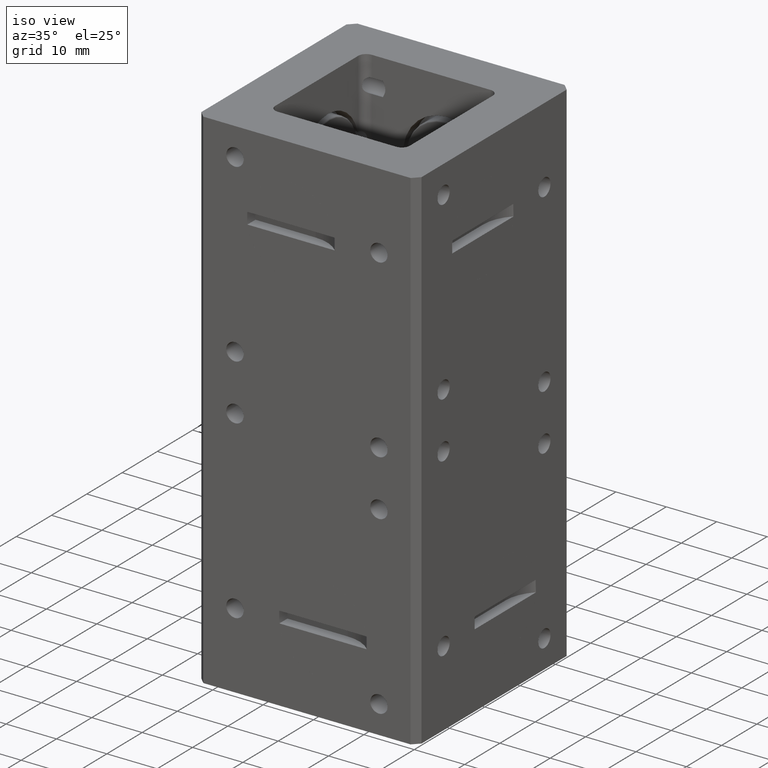
[diagram: clean part render]
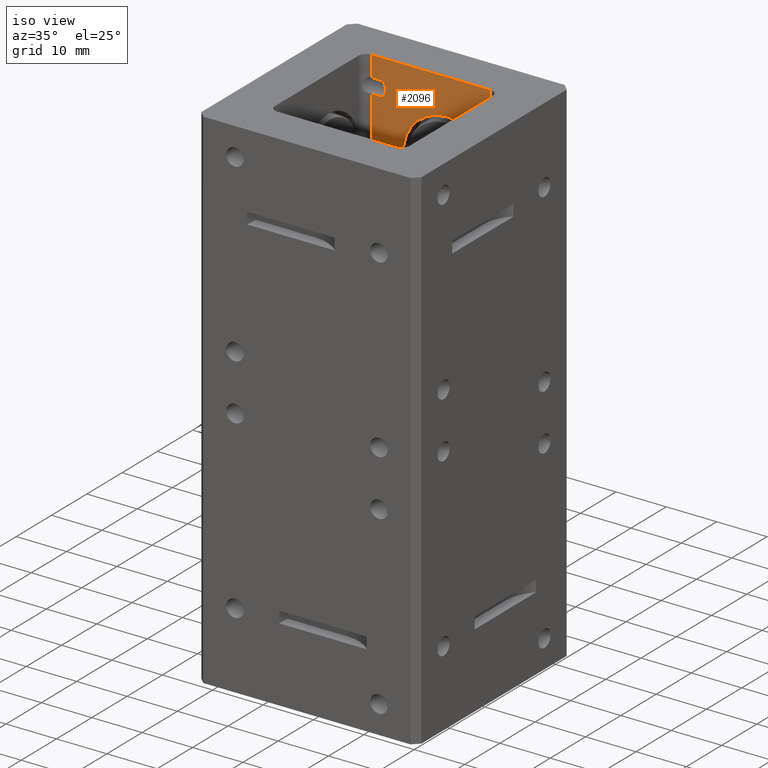
[diagram: same view with one face highlighted and labeled with its STEP entity id]
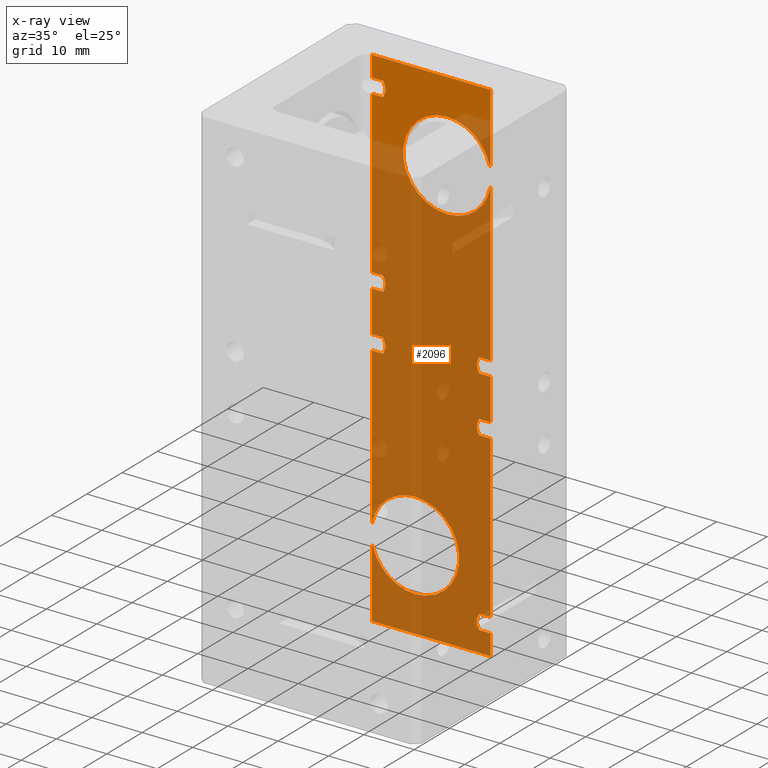
[diagram: x-ray of the same camera — body ghosted, the highlighted face saturated]
A machine part, iso view. The second image highlights one B-rep face of the part: STEP entity #2096.
The next image is the same camera in x-ray: the body ghosted, the highlighted face saturated — about 88% of this face is hidden behind the body in this view.
In plain terms, the highlighted planar face has unit normal (0, -1, 0).
Its self-contained STEP definition (entity closure, byte-faithful):
#102 = LINE ( 'NONE', #1691, #12678 ) ;
#171 = VECTOR ( 'NONE', #16399, 39.37007874015748143 ) ;
#243 = EDGE_CURVE ( 'NONE', #6426, #3027, #13170, .T. ) ;
#272 = VERTEX_POINT ( 'NONE', #4719 ) ;
#384 = DIRECTION ( 'NONE',  ( -0.000000000000000000, -0.000000000000000000, -1.000000000000000000 ) ) ;
#486 = CARTESIAN_POINT ( 'NONE',  ( -0.4639999999999996350, 0.5259999999999996900, 1.838373774496717239 ) ) ;
#641 = DIRECTION ( 'NONE',  ( 0.000000000000000000, 0.000000000000000000, -1.000000000000000000 ) ) ;
#667 = VERTEX_POINT ( 'NONE', #14389 ) ;
#815 = ORIENTED_EDGE ( 'NONE', *, *, #17587, .F. ) ;
#844 = CARTESIAN_POINT ( 'NONE',  ( -0.4639999999999996350, 0.5259999999999996900, 1.723626225503282816 ) ) ;
#857 = VECTOR ( 'NONE', #6036, 39.37007874015748143 ) ;
#879 = VECTOR ( 'NONE', #10833, 39.37007874015748143 ) ;
#900 = CARTESIAN_POINT ( 'NONE',  ( 0.3759999999999934506, 0.5259999999999996900, -0.4633737744967093564 ) ) ;
#919 = CARTESIAN_POINT ( 'NONE',  ( -0.3714278024997919592, 0.5259999999999996900, 0.4543550165401254448 ) ) ;
#1025 = EDGE_CURVE ( 'NONE', #4883, #15552, #11957, .T. ) ;
#1045 = EDGE_CURVE ( 'NONE', #1119, #6895, #9531, .T. ) ;
#1048 = DIRECTION ( 'NONE',  ( 0.000000000000000000, -0.000000000000000000, -1.000000000000000000 ) ) ;
#1054 = CARTESIAN_POINT ( 'NONE',  ( 0.4640000000000004121, 0.5259999999999996900, -1.723626225503291032 ) ) ;
#1074 = CARTESIAN_POINT ( 'NONE',  ( 0.3713960435050798203, 0.5259999999999996900, -1.829292371239651604 ) ) ;
#1119 = VERTEX_POINT ( 'NONE', #7474 ) ;
#1124 = DIRECTION ( 'NONE',  ( 1.000000000000000000, -0.000000000000000000, -0.000000000000000000 ) ) ;
#1129 = DIRECTION ( 'NONE',  ( 0.000000000000000000, -1.000000000000000000, 0.000000000000000000 ) ) ;
#1182 = VERTEX_POINT ( 'NONE', #17712 ) ;
#1193 = VERTEX_POINT ( 'NONE', #14559 ) ;
#1204 = CARTESIAN_POINT ( 'NONE',  ( -0.3598165165039762803, 0.5259999999999996900, 0.4262139015534828212 ) ) ;
#1243 = CARTESIAN_POINT ( 'NONE',  ( -0.4639999999999996350, 0.5259999999999996900, -2.000000000000000000 ) ) ;
#1291 = CARTESIAN_POINT ( 'NONE',  ( 0.3670370577167692550, 0.5259999999999996900, 0.07024275800870537212 ) ) ;
#1321 = CARTESIAN_POINT ( 'NONE',  ( 0.3759999999999934506, 0.5259999999999996900, -0.3486262255032906432 ) ) ;
#1379 = CARTESIAN_POINT ( 'NONE',  ( 0.3669803936085606622, 0.5259999999999996900, -0.008117424668353205933 ) ) ;
#1388 = CARTESIAN_POINT ( 'NONE',  ( -0.4639999999999996350, 0.5259999999999996900, 2.000000000000000000 ) ) ;
#1509 = EDGE_CURVE ( 'NONE', #17460, #10762, #10696, .T. ) ;
#1557 = CARTESIAN_POINT ( 'NONE',  ( -0.4639999999999996350, 0.5259999999999996900, 2.000000000000000000 ) ) ;
#1621 = CIRCLE ( 'NONE', #17310, 0.3437499999999998335 ) ;
#1691 = CARTESIAN_POINT ( 'NONE',  ( -0.8600000000000013189, 0.5259999999999996900, 1.723626225503282816 ) ) ;
#1760 = ORIENTED_EDGE ( 'NONE', *, *, #9194, .T. ) ;
#1767 = CARTESIAN_POINT ( 'NONE',  ( -0.8600000000000013189, 0.5259999999999996900, -0.08837377449671701690 ) ) ;
#1794 = DIRECTION ( 'NONE',  ( 1.000000000000000000, 0.000000000000000000, 0.000000000000000000 ) ) ;
#1967 = VERTEX_POINT ( 'NONE', #10535 ) ;
#2041 = CARTESIAN_POINT ( 'NONE',  ( -0.3760000000000013887, 0.5259999999999996900, 1.723626225503282372 ) ) ;
#2074 = DIRECTION ( 'NONE',  ( 0.000000000000000000, -1.000000000000000000, 0.000000000000000000 ) ) ;
#2086 = ORIENTED_EDGE ( 'NONE', *, *, #13887, .F. ) ;
#2096 = ADVANCED_FACE ( 'NONE', ( #9291 ), #6525, .T. ) ;
#2147 = EDGE_CURVE ( 'NONE', #3691, #9019, #3325, .T. ) ;
#2152 = CARTESIAN_POINT ( 'NONE',  ( 0.4640000000000004121, 0.5259999999999996900, 1.463373774496709467 ) ) ;
#2168 = CARTESIAN_POINT ( 'NONE',  ( 0.3598165165039737823, 0.5259999999999995790, -0.3857860984465205645 ) ) ;
#2421 = VECTOR ( 'NONE', #7334, 39.37007874015748143 ) ;
#2472 = EDGE_CURVE ( 'NONE', #272, #10762, #16103, .T. ) ;
#2534 = VECTOR ( 'NONE', #17591, 39.37007874015748143 ) ;
#2701 = CIRCLE ( 'NONE', #5826, 0.3437499999999998335 ) ;
#2715 = EDGE_CURVE ( 'NONE', #18840, #5136, #14868, .T. ) ;
#2837 = EDGE_CURVE ( 'NONE', #15478, #14735, #13218, .T. ) ;
#2912 = ORIENTED_EDGE ( 'NONE', *, *, #4072, .F. ) ;
#3027 = VERTEX_POINT ( 'NONE', #486 ) ;
#3088 = CARTESIAN_POINT ( 'NONE',  ( -0.3598165165039762803, 0.5259999999999996900, 1.801213901553482710 ) ) ;
#3314 = CARTESIAN_POINT ( 'NONE',  ( 0.4640000000000004121, 0.5259999999999996900, -0.02637377449670971069 ) ) ;
#3325 = CIRCLE ( 'NONE', #9500, 0.3437499999999998335 ) ;
#3433 = CARTESIAN_POINT ( 'NONE',  ( 0.4640000000000004121, 0.5259999999999996900, 1.318052107150487151 ) ) ;
#3445 = CARTESIAN_POINT ( 'NONE',  ( 0.1249999999999999584, 0.5259999999999996900, 1.375000000000000000 ) ) ;
#3471 = CARTESIAN_POINT ( 'NONE',  ( -0.3570664232477111510, 0.5259999999999996900, 0.3958191447205977043 ) ) ;
#3474 = VERTEX_POINT ( 'NONE', #5072 ) ;
#3482 = B_SPLINE_CURVE_WITH_KNOTS ( 'NONE', 3,
 ( #3502, #9406, #7955, #18219, #9583, #15412, #12558, #4962, #3591, #13808 ),
 .UNSPECIFIED., .F., .F.,
 ( 4, 2, 2, 2, 4 ),
 ( 0.008688275837649313271, 0.009462812957391030302, 0.01023735007713274733, 0.01101188719687446610, 0.01178642431661618313 ),
 .UNSPECIFIED. ) ;
#3502 = CARTESIAN_POINT ( 'NONE',  ( -0.3760000000000012776, 0.5259999999999996900, -0.08837377449671693364 ) ) ;
#3565 = CARTESIAN_POINT ( 'NONE',  ( -0.3670370577167744730, 0.5259999999999998010, 0.4452427580087112147 ) ) ;
#3591 = CARTESIAN_POINT ( 'NONE',  ( -0.3714278024997919037, 0.5259999999999996900, 0.01735501654012486586 ) ) ;
#3691 = VERTEX_POINT ( 'NONE', #13119 ) ;
#3711 = LINE ( 'NONE', #6845, #12444 ) ;
#3743 = VERTEX_POINT ( 'NONE', #10634 ) ;
#3782 = CARTESIAN_POINT ( 'NONE',  ( -0.8600000000000013189, 0.5259999999999996900, 0.02637377449671696877 ) ) ;
#3785 = VERTEX_POINT ( 'NONE', #7661 ) ;
#3816 = VECTOR ( 'NONE', #16907, 39.37007874015748143 ) ;
#3832 = VECTOR ( 'NONE', #12329, 39.37007874015748143 ) ;
#3838 = ORIENTED_EDGE ( 'NONE', *, *, #11992, .F. ) ;
#4022 = VECTOR ( 'NONE', #8235, 39.37007874015748143 ) ;
#4072 = EDGE_CURVE ( 'NONE', #7396, #3743, #9635, .T. ) ;
#4364 = ORIENTED_EDGE ( 'NONE', *, *, #1045, .T. ) ;
#4427 = LINE ( 'NONE', #5904, #12282 ) ;
#4453 = CARTESIAN_POINT ( 'NONE',  ( -0.3760000000000013887, 0.5259999999999996900, 1.838373774496717461 ) ) ;
#4506 = CARTESIAN_POINT ( 'NONE',  ( 0.4640000000000004121, 0.5259999999999996900, -2.000000000000000000 ) ) ;
#4518 = DIRECTION ( 'NONE',  ( 0.000000000000000000, 0.000000000000000000, -1.000000000000000000 ) ) ;
#4654 = DIRECTION ( 'NONE',  ( 1.000000000000000000, -0.000000000000000000, -0.000000000000000000 ) ) ;
#4667 = LINE ( 'NONE', #7384, #857 ) ;
#4710 = LINE ( 'NONE', #17490, #11930 ) ;
#4719 = CARTESIAN_POINT ( 'NONE',  ( -0.4639999999999996350, 0.5259999999999996900, -1.463373774496716573 ) ) ;
#4802 = EDGE_CURVE ( 'NONE', #13574, #12518, #14998, .T. ) ;
#4862 = VECTOR ( 'NONE', #384, 39.37007874015748143 ) ;
#4871 = ORIENTED_EDGE ( 'NONE', *, *, #5958, .T. ) ;
#4883 = VERTEX_POINT ( 'NONE', #9832 ) ;
#4917 = ORIENTED_EDGE ( 'NONE', *, *, #12196, .F. ) ;
#4950 = LINE ( 'NONE', #12459, #8906 ) ;
#4962 = CARTESIAN_POINT ( 'NONE',  ( -0.3670370577167743065, 0.5259999999999998010, 0.008242758008710692960 ) ) ;
#4976 = CARTESIAN_POINT ( 'NONE',  ( 0.4640000000000004121, 0.5259999999999996900, -0.3486262255032906432 ) ) ;
#5044 = ORIENTED_EDGE ( 'NONE', *, *, #17856, .F. ) ;
#5072 = CARTESIAN_POINT ( 'NONE',  ( -0.3760000000000012776, 0.5259999999999996900, -0.08837377449671693364 ) ) ;
#5111 = CARTESIAN_POINT ( 'NONE',  ( 0.4640000000000004121, 0.5259999999999996900, 2.000000000000000000 ) ) ;
#5136 = VERTEX_POINT ( 'NONE', #6265 ) ;
#5195 = CARTESIAN_POINT ( 'NONE',  ( 0.8599999999999935474, 0.5259999999999996900, -0.4633737744967093564 ) ) ;
#5246 = ORIENTED_EDGE ( 'NONE', *, *, #15863, .F. ) ;
#5282 = ORIENTED_EDGE ( 'NONE', *, *, #11180, .F. ) ;
#5307 = ORIENTED_EDGE ( 'NONE', *, *, #12497, .F. ) ;
#5359 = CARTESIAN_POINT ( 'NONE',  ( -0.3760000000000013887, 0.5259999999999996900, 0.4633737744967174610 ) ) ;
#5390 = VECTOR ( 'NONE', #9424, 39.37007874015748143 ) ;
#5440 = DIRECTION ( 'NONE',  ( 0.000000000000000000, -1.000000000000000000, 0.000000000000000000 ) ) ;
#5456 = ORIENTED_EDGE ( 'NONE', *, *, #10601, .F. ) ;
#5674 = CARTESIAN_POINT ( 'NONE',  ( 0.3713960435050798203, 0.5259999999999996900, -0.4542923712396518265 ) ) ;
#5716 = ORIENTED_EDGE ( 'NONE', *, *, #10058, .F. ) ;
#5780 = VERTEX_POINT ( 'NONE', #3314 ) ;
#5826 = AXIS2_PLACEMENT_3D ( 'NONE', #6756, #2074, #13942 ) ;
#5904 = CARTESIAN_POINT ( 'NONE',  ( -0.8600000000000013189, 0.5259999999999996900, 1.838373774496717239 ) ) ;
#5926 = CARTESIAN_POINT ( 'NONE',  ( -0.3570664232477113731, 0.5259999999999996900, 1.770819144720598093 ) ) ;
#5955 = CARTESIAN_POINT ( 'NONE',  ( -0.8600000000000013189, 0.5259999999999996900, 0.3486262255032827051 ) ) ;
#5958 = EDGE_CURVE ( 'NONE', #13117, #6426, #15401, .T. ) ;
#6027 = ORIENTED_EDGE ( 'NONE', *, *, #2837, .F. ) ;
#6036 = DIRECTION ( 'NONE',  ( -0.000000000000000000, -0.000000000000000000, -1.000000000000000000 ) ) ;
#6046 = B_SPLINE_CURVE_WITH_KNOTS ( 'NONE', 3,
 ( #15924, #14512, #1291, #17010, #9723, #15539, #11726, #1379, #19041, #17861 ),
 .UNSPECIFIED., .F., .F.,
 ( 4, 2, 2, 2, 4 ),
 ( 0.008808687082116340578, 0.009579936630720160828, 0.01035118617932398108, 0.01112243572792779960, 0.01189368527653161985 ),
 .UNSPECIFIED. ) ;
#6112 = CARTESIAN_POINT ( 'NONE',  ( -0.3669803936085656026, 0.5259999999999996900, 1.741882575331641814 ) ) ;
#6149 = EDGE_CURVE ( 'NONE', #272, #3785, #10421, .T. ) ;
#6265 = CARTESIAN_POINT ( 'NONE',  ( 0.3759999999999934506, 0.5259999999999996900, -1.838373774496709467 ) ) ;
#6362 = ORIENTED_EDGE ( 'NONE', *, *, #11084, .F. ) ;
#6426 = VERTEX_POINT ( 'NONE', #1388 ) ;
#6525 = PLANE ( 'NONE',  #9179 ) ;
#6756 = CARTESIAN_POINT ( 'NONE',  ( -0.1250000000000000278, 0.5259999999999996900, -1.375000000000000000 ) ) ;
#6759 = VERTEX_POINT ( 'NONE', #5359 ) ;
#6845 = CARTESIAN_POINT ( 'NONE',  ( -0.8600000000000013189, 0.5259999999999996900, 0.4633737744967172389 ) ) ;
#6895 = VERTEX_POINT ( 'NONE', #18909 ) ;
#6920 = CARTESIAN_POINT ( 'NONE',  ( 0.3597782595194781718, 0.5259999999999996900, -1.801088764216034255 ) ) ;
#7334 = DIRECTION ( 'NONE',  ( -0.000000000000000000, -0.000000000000000000, -1.000000000000000000 ) ) ;
#7384 = CARTESIAN_POINT ( 'NONE',  ( -0.4639999999999996350, 0.5259999999999996900, 2.000000000000000000 ) ) ;
#7396 = VERTEX_POINT ( 'NONE', #17353 ) ;
#7474 = CARTESIAN_POINT ( 'NONE',  ( -0.4639999999999996350, 0.5259999999999996900, 0.3486262255032828161 ) ) ;
#7497 = CARTESIAN_POINT ( 'NONE',  ( -0.4639999999999996350, 0.5259999999999996900, -1.318052107150482044 ) ) ;
#7661 = CARTESIAN_POINT ( 'NONE',  ( -0.4571959338721702792, 0.5259999999999995790, -1.463373774496716795 ) ) ;
#7666 = EDGE_CURVE ( 'NONE', #5780, #15478, #4710, .T. ) ;
#7682 = VECTOR ( 'NONE', #13433, 39.37007874015748143 ) ;
#7916 = VERTEX_POINT ( 'NONE', #3433 ) ;
#7921 = CARTESIAN_POINT ( 'NONE',  ( 0.8599999999999935474, 0.5259999999999996900, 0.08837377449670921759 ) ) ;
#7955 = CARTESIAN_POINT ( 'NONE',  ( -0.3669803936085657137, 0.5259999999999996900, -0.07011742466835797771 ) ) ;
#7975 = EDGE_CURVE ( 'NONE', #14735, #4883, #11293, .T. ) ;
#8074 = LINE ( 'NONE', #10577, #171 ) ;
#8082 = CARTESIAN_POINT ( 'NONE',  ( 0.3570793821737509588, 0.5259999999999996900, -0.3957421139530918341 ) ) ;
#8185 = B_SPLINE_CURVE_WITH_KNOTS ( 'NONE', 3,
 ( #11860, #11761, #6112, #13305, #5926, #17704, #3088, #10521, #14552, #4453 ),
 .UNSPECIFIED., .F., .F.,
 ( 4, 2, 2, 2, 4 ),
 ( 0.008688275837649361844, 0.009462812957391087548, 0.01023735007713281325, 0.01101188719687453722, 0.01178642431661626293 ),
 .UNSPECIFIED. ) ;
#8205 = VECTOR ( 'NONE', #1124, 39.37007874015748143 ) ;
#8235 = DIRECTION ( 'NONE',  ( -1.000000000000000000, -0.000000000000000000, -0.000000000000000000 ) ) ;
#8282 = CARTESIAN_POINT ( 'NONE',  ( -0.3570793821737515694, 0.5259999999999996900, 0.4162578860469105524 ) ) ;
#8340 = CARTESIAN_POINT ( 'NONE',  ( -0.1250000000000000278, 0.5259999999999996900, -1.031250000000000000 ) ) ;
#8629 = CARTESIAN_POINT ( 'NONE',  ( 0.3570793821737510698, 0.5259999999999996900, -1.770742113953092112 ) ) ;
#8644 = CARTESIAN_POINT ( 'NONE',  ( 0.1249999999999999584, 0.5259999999999996900, 1.718749999999999778 ) ) ;
#8682 = LINE ( 'NONE', #14520, #2421 ) ;
#8837 = CARTESIAN_POINT ( 'NONE',  ( 0.4640000000000004121, 0.5259999999999996900, -1.838373774496709245 ) ) ;
#8906 = VECTOR ( 'NONE', #10823, 39.37007874015748143 ) ;
#9019 = VERTEX_POINT ( 'NONE', #8340 ) ;
#9179 = AXIS2_PLACEMENT_3D ( 'NONE', #14173, #1129, #1048 ) ;
#9194 = EDGE_CURVE ( 'NONE', #1182, #11231, #4667, .T. ) ;
#9226 = CARTESIAN_POINT ( 'NONE',  ( 0.8599999999999935474, 0.5259999999999996900, 1.463373774496709467 ) ) ;
#9230 = CIRCLE ( 'NONE', #10770, 0.3437499999999998335 ) ;
#9269 = EDGE_CURVE ( 'NONE', #14722, #18840, #4950, .T. ) ;
#9291 = FACE_OUTER_BOUND ( 'NONE', #12805, .T. ) ;
#9306 = CARTESIAN_POINT ( 'NONE',  ( -0.4639999999999996350, 0.5259999999999996900, 0.4633737744967172389 ) ) ;
#9357 = DIRECTION ( 'NONE',  ( -1.000000000000000000, -0.000000000000000000, -0.000000000000000000 ) ) ;
#9406 = CARTESIAN_POINT ( 'NONE',  ( -0.3713960435050865927, 0.5259999999999998010, -0.07929237123965834910 ) ) ;
#9424 = DIRECTION ( 'NONE',  ( -1.000000000000000000, 0.000000000000000000, 0.000000000000000000 ) ) ;
#9500 = AXIS2_PLACEMENT_3D ( 'NONE', #10141, #5440, #12920 ) ;
#9519 = CARTESIAN_POINT ( 'NONE',  ( 0.3714278024997852978, 0.5259999999999998010, -0.3576449834598813826 ) ) ;
#9531 = LINE ( 'NONE', #15355, #3816 ) ;
#9583 = CARTESIAN_POINT ( 'NONE',  ( -0.3570664232477113731, 0.5259999999999996900, -0.04118085527940230917 ) ) ;
#9635 = LINE ( 'NONE', #7921, #3832 ) ;
#9647 = VECTOR ( 'NONE', #10253, 39.37007874015748143 ) ;
#9723 = CARTESIAN_POINT ( 'NONE',  ( 0.3570793821737510143, 0.5259999999999995790, 0.04125788604690782541 ) ) ;
#9832 = CARTESIAN_POINT ( 'NONE',  ( 0.3759999999999934506, 0.5259999999999996900, -0.4633737744967093564 ) ) ;
#9894 = DIRECTION ( 'NONE',  ( 0.000000000000000000, 0.000000000000000000, -1.000000000000000000 ) ) ;
#9998 = VECTOR ( 'NONE', #17553, 39.37007874015748143 ) ;
#10016 = CARTESIAN_POINT ( 'NONE',  ( -0.3597782595194802813, 0.5259999999999995790, 0.3859112357839629692 ) ) ;
#10043 = CARTESIAN_POINT ( 'NONE',  ( 0.8599999999999935474, 0.5259999999999996900, -1.838373774496709467 ) ) ;
#10058 = EDGE_CURVE ( 'NONE', #1967, #10576, #1621, .T. ) ;
#10141 = CARTESIAN_POINT ( 'NONE',  ( -0.1250000000000000278, 0.5259999999999996900, -1.375000000000000000 ) ) ;
#10202 = VERTEX_POINT ( 'NONE', #13261 ) ;
#10253 = DIRECTION ( 'NONE',  ( -1.000000000000000000, 0.000000000000000000, 0.000000000000000000 ) ) ;
#10314 = VERTEX_POINT ( 'NONE', #15058 ) ;
#10325 = EDGE_CURVE ( 'NONE', #15486, #1967, #14960, .T. ) ;
#10359 = ORIENTED_EDGE ( 'NONE', *, *, #7666, .F. ) ;
#10388 = EDGE_CURVE ( 'NONE', #6759, #12518, #3711, .T. ) ;
#10421 = LINE ( 'NONE', #11856, #10486 ) ;
#10486 = VECTOR ( 'NONE', #16245, 39.37007874015748143 ) ;
#10488 = EDGE_CURVE ( 'NONE', #10314, #7916, #13038, .T. ) ;
#10489 = CARTESIAN_POINT ( 'NONE',  ( 0.1249999999999999584, 0.5259999999999996900, 1.375000000000000000 ) ) ;
#10521 = CARTESIAN_POINT ( 'NONE',  ( -0.3670370577167745840, 0.5259999999999998010, 1.820242758008711048 ) ) ;
#10535 = CARTESIAN_POINT ( 'NONE',  ( 0.4571959338721721666, 0.5259999999999996900, 1.463373774496709467 ) ) ;
#10576 = VERTEX_POINT ( 'NONE', #8644 ) ;
#10577 = CARTESIAN_POINT ( 'NONE',  ( 0.4640000000000004121, 0.5259999999999996900, 2.000000000000000000 ) ) ;
#10601 = EDGE_CURVE ( 'NONE', #1119, #667, #19019, .T. ) ;
#10634 = CARTESIAN_POINT ( 'NONE',  ( 0.3759999999999936171, 0.5259999999999996900, 0.08837377449670937024 ) ) ;
#10696 = LINE ( 'NONE', #17980, #15636 ) ;
#10762 = VERTEX_POINT ( 'NONE', #1243 ) ;
#10770 = AXIS2_PLACEMENT_3D ( 'NONE', #18349, #12593, #16711 ) ;
#10823 = DIRECTION ( 'NONE',  ( -1.000000000000000000, 0.000000000000000000, 0.000000000000000000 ) ) ;
#10833 = DIRECTION ( 'NONE',  ( -1.000000000000000000, -0.000000000000000000, -0.000000000000000000 ) ) ;
#10962 = LINE ( 'NONE', #11053, #13061 ) ;
#10973 = EDGE_CURVE ( 'NONE', #667, #6759, #15729, .T. ) ;
#11028 = CARTESIAN_POINT ( 'NONE',  ( 0.4640000000000004121, 0.5259999999999996900, 2.000000000000000000 ) ) ;
#11053 = CARTESIAN_POINT ( 'NONE',  ( 0.4640000000000004121, 0.5259999999999996900, 2.000000000000000000 ) ) ;
#11054 = CARTESIAN_POINT ( 'NONE',  ( 0.3570664232477108180, 0.5259999999999996900, -0.4161808552794005744 ) ) ;
#11065 = VECTOR ( 'NONE', #16861, 39.37007874015748143 ) ;
#11084 = EDGE_CURVE ( 'NONE', #1182, #3474, #12293, .T. ) ;
#11143 = DIRECTION ( 'NONE',  ( 1.000000000000000000, -0.000000000000000000, -0.000000000000000000 ) ) ;
#11180 = EDGE_CURVE ( 'NONE', #15296, #17460, #8074, .T. ) ;
#11216 = CARTESIAN_POINT ( 'NONE',  ( 0.3759999999999934506, 0.5259999999999996900, -1.723626225503291032 ) ) ;
#11231 = VERTEX_POINT ( 'NONE', #7497 ) ;
#11232 = ORIENTED_EDGE ( 'NONE', *, *, #7975, .F. ) ;
#11235 = DIRECTION ( 'NONE',  ( -0.000000000000000000, -0.000000000000000000, -1.000000000000000000 ) ) ;
#11293 = B_SPLINE_CURVE_WITH_KNOTS ( 'NONE', 3,
 ( #16792, #9519, #15343, #2168, #8082, #11054, #14022, #12871, #5674, #900 ),
 .UNSPECIFIED., .F., .F.,
 ( 4, 2, 2, 2, 4 ),
 ( 0.008808687082116271189, 0.009579936630720087970, 0.01035118617932390302, 0.01112243572792771806, 0.01189368527653153484 ),
 .UNSPECIFIED. ) ;
#11365 = CIRCLE ( 'NONE', #12584, 0.3437499999999998335 ) ;
#11408 = ORIENTED_EDGE ( 'NONE', *, *, #6149, .F. ) ;
#11487 = VECTOR ( 'NONE', #11143, 39.37007874015748143 ) ;
#11641 = DIRECTION ( 'NONE',  ( -1.000000000000000000, -0.000000000000000000, -0.000000000000000000 ) ) ;
#11654 = EDGE_CURVE ( 'NONE', #5136, #15296, #13890, .T. ) ;
#11726 = CARTESIAN_POINT ( 'NONE',  ( 0.3597782595194783384, 0.5259999999999996900, 0.01091123578396556437 ) ) ;
#11761 = CARTESIAN_POINT ( 'NONE',  ( -0.3713960435050866482, 0.5259999999999998010, 1.732707628760341123 ) ) ;
#11842 = ORIENTED_EDGE ( 'NONE', *, *, #12491, .F. ) ;
#11856 = CARTESIAN_POINT ( 'NONE',  ( -0.8600000000000013189, 0.5259999999999996900, -1.463373774496716795 ) ) ;
#11860 = CARTESIAN_POINT ( 'NONE',  ( -0.3760000000000013887, 0.5259999999999996900, 1.723626225503282372 ) ) ;
#11864 = VERTEX_POINT ( 'NONE', #2041 ) ;
#11930 = VECTOR ( 'NONE', #14789, 39.37007874015748143 ) ;
#11957 = LINE ( 'NONE', #5195, #12127 ) ;
#11984 = ORIENTED_EDGE ( 'NONE', *, *, #11654, .F. ) ;
#11992 = EDGE_CURVE ( 'NONE', #11864, #1193, #8185, .T. ) ;
#12127 = VECTOR ( 'NONE', #4654, 39.37007874015748143 ) ;
#12196 = EDGE_CURVE ( 'NONE', #1193, #3027, #4427, .T. ) ;
#12282 = VECTOR ( 'NONE', #11641, 39.37007874015748143 ) ;
#12285 = CARTESIAN_POINT ( 'NONE',  ( 0.3759999999999936171, 0.5259999999999996900, -0.02637377449670987375 ) ) ;
#12293 = LINE ( 'NONE', #1767, #17659 ) ;
#12329 = DIRECTION ( 'NONE',  ( -1.000000000000000000, 0.000000000000000000, 0.000000000000000000 ) ) ;
#12444 = VECTOR ( 'NONE', #12485, 39.37007874015748143 ) ;
#12459 = CARTESIAN_POINT ( 'NONE',  ( 0.8599999999999935474, 0.5259999999999996900, -1.723626225503291032 ) ) ;
#12485 = DIRECTION ( 'NONE',  ( -1.000000000000000000, -0.000000000000000000, -0.000000000000000000 ) ) ;
#12491 = EDGE_CURVE ( 'NONE', #15552, #14722, #18312, .T. ) ;
#12497 = EDGE_CURVE ( 'NONE', #10202, #6895, #16960, .T. ) ;
#12518 = VERTEX_POINT ( 'NONE', #9306 ) ;
#12540 = CARTESIAN_POINT ( 'NONE',  ( 0.3759999999999934506, 0.5259999999999996900, -1.723626225503291032 ) ) ;
#12558 = CARTESIAN_POINT ( 'NONE',  ( -0.3598165165039762248, 0.5259999999999996900, -0.01078609844651733790 ) ) ;
#12584 = AXIS2_PLACEMENT_3D ( 'NONE', #10489, #14890, #4518 ) ;
#12593 = DIRECTION ( 'NONE',  ( 0.000000000000000000, -1.000000000000000000, 0.000000000000000000 ) ) ;
#12678 = VECTOR ( 'NONE', #1794, 39.37007874015748143 ) ;
#12801 = CARTESIAN_POINT ( 'NONE',  ( -0.3713960435050865927, 0.5259999999999998010, 0.3577076287603414007 ) ) ;
#12805 = EDGE_LOOP ( 'NONE', ( #5716, #17685, #13108, #4871, #14790, #4917, #3838, #2086, #16743, #18651, #14053, #5456, #4364, #5307, #5044, #6362, #1760, #13271, #13211, #5246, #11408, #17763, #16140, #5282, #11984, #16918, #14973, #11842, #16452, #11232, #6027, #10359, #815, #17275, #2912, #13613, #15055, #17807 ) ) ;
#12850 = CARTESIAN_POINT ( 'NONE',  ( 0.3598165165039738378, 0.5259999999999995790, -1.760786098446520453 ) ) ;
#12871 = CARTESIAN_POINT ( 'NONE',  ( 0.3669803936085603846, 0.5259999999999998010, -0.4451174246683525793 ) ) ;
#12920 = DIRECTION ( 'NONE',  ( 0.000000000000000000, 0.000000000000000000, -1.000000000000000000 ) ) ;
#13038 = CIRCLE ( 'NONE', #17015, 0.3437499999999998335 ) ;
#13061 = VECTOR ( 'NONE', #11235, 39.37007874015748143 ) ;
#13108 = ORIENTED_EDGE ( 'NONE', *, *, #15774, .F. ) ;
#13117 = VERTEX_POINT ( 'NONE', #5111 ) ;
#13119 = CARTESIAN_POINT ( 'NONE',  ( -0.1249999999999999861, 0.5259999999999996900, -1.718749999999999778 ) ) ;
#13170 = LINE ( 'NONE', #13276, #2534 ) ;
#13211 = ORIENTED_EDGE ( 'NONE', *, *, #2147, .F. ) ;
#13218 = LINE ( 'NONE', #17542, #9647 ) ;
#13261 = CARTESIAN_POINT ( 'NONE',  ( -0.3760000000000012776, 0.5259999999999996900, 0.02637377449671688204 ) ) ;
#13271 = ORIENTED_EDGE ( 'NONE', *, *, #15108, .F. ) ;
#13276 = CARTESIAN_POINT ( 'NONE',  ( -0.4639999999999996350, 0.5259999999999996900, 2.000000000000000000 ) ) ;
#13305 = CARTESIAN_POINT ( 'NONE',  ( -0.3597782595194802813, 0.5259999999999995790, 1.760911235783962914 ) ) ;
#13418 = CARTESIAN_POINT ( 'NONE',  ( 0.4640000000000004121, 0.5259999999999996900, -0.4633737744967093564 ) ) ;
#13433 = DIRECTION ( 'NONE',  ( -0.000000000000000000, -0.000000000000000000, -1.000000000000000000 ) ) ;
#13574 = VERTEX_POINT ( 'NONE', #844 ) ;
#13594 = CARTESIAN_POINT ( 'NONE',  ( -0.4639999999999996350, 0.5259999999999996900, 2.000000000000000000 ) ) ;
#13613 = ORIENTED_EDGE ( 'NONE', *, *, #18364, .F. ) ;
#13650 = DIRECTION ( 'NONE',  ( 1.000000000000000000, 0.000000000000000000, 0.000000000000000000 ) ) ;
#13752 = DIRECTION ( 'NONE',  ( 0.000000000000000000, -1.000000000000000000, 0.000000000000000000 ) ) ;
#13808 = CARTESIAN_POINT ( 'NONE',  ( -0.3760000000000012776, 0.5259999999999996900, 0.02637377449671688204 ) ) ;
#13887 = EDGE_CURVE ( 'NONE', #13574, #11864, #102, .T. ) ;
#13890 = LINE ( 'NONE', #10043, #8205 ) ;
#13942 = DIRECTION ( 'NONE',  ( 0.000000000000000000, 0.000000000000000000, -1.000000000000000000 ) ) ;
#14022 = CARTESIAN_POINT ( 'NONE',  ( 0.3597782595194780608, 0.5259999999999996900, -0.4260887642160339217 ) ) ;
#14053 = ORIENTED_EDGE ( 'NONE', *, *, #10973, .F. ) ;
#14057 = EDGE_CURVE ( 'NONE', #3743, #16092, #6046, .T. ) ;
#14135 = CARTESIAN_POINT ( 'NONE',  ( -0.3760000000000013887, 0.5259999999999995790, 0.3486262255032825941 ) ) ;
#14173 = CARTESIAN_POINT ( 'NONE',  ( -0.4639999999999996350, 0.5259999999999996900, 2.000000000000000000 ) ) ;
#14326 = CARTESIAN_POINT ( 'NONE',  ( -0.3760000000000013887, 0.5259999999999996900, 0.4633737744967174610 ) ) ;
#14389 = CARTESIAN_POINT ( 'NONE',  ( -0.3760000000000013887, 0.5259999999999995790, 0.3486262255032825941 ) ) ;
#14512 = CARTESIAN_POINT ( 'NONE',  ( 0.3714278024997854089, 0.5259999999999996900, 0.07935501654011851980 ) ) ;
#14520 = CARTESIAN_POINT ( 'NONE',  ( 0.4640000000000004121, 0.5259999999999996900, 2.000000000000000000 ) ) ;
#14552 = CARTESIAN_POINT ( 'NONE',  ( -0.3714278024997920702, 0.5259999999999996900, 1.829355016540125112 ) ) ;
#14559 = CARTESIAN_POINT ( 'NONE',  ( -0.3760000000000013887, 0.5259999999999996900, 1.838373774496717461 ) ) ;
#14565 = CARTESIAN_POINT ( 'NONE',  ( 0.3670370577167690884, 0.5259999999999996900, -1.741757241991295224 ) ) ;
#14722 = VERTEX_POINT ( 'NONE', #1054 ) ;
#14735 = VERTEX_POINT ( 'NONE', #1321 ) ;
#14789 = DIRECTION ( 'NONE',  ( -0.000000000000000000, -0.000000000000000000, -1.000000000000000000 ) ) ;
#14790 = ORIENTED_EDGE ( 'NONE', *, *, #243, .T. ) ;
#14868 = B_SPLINE_CURVE_WITH_KNOTS ( 'NONE', 3,
 ( #11216, #18531, #14565, #12850, #8629, #18920, #6920, #17162, #1074, #18727 ),
 .UNSPECIFIED., .F., .F.,
 ( 4, 2, 2, 2, 4 ),
 ( 0.008808687082116349251, 0.009579936630720162563, 0.01035118617932397587, 0.01112243572792778919, 0.01189368527653160250 ),
 .UNSPECIFIED. ) ;
#14890 = DIRECTION ( 'NONE',  ( 0.000000000000000000, -1.000000000000000000, 0.000000000000000000 ) ) ;
#14960 = LINE ( 'NONE', #9226, #5390 ) ;
#14973 = ORIENTED_EDGE ( 'NONE', *, *, #9269, .F. ) ;
#14998 = LINE ( 'NONE', #13594, #4862 ) ;
#15055 = ORIENTED_EDGE ( 'NONE', *, *, #10488, .F. ) ;
#15058 = CARTESIAN_POINT ( 'NONE',  ( 0.1250000000000000000, 0.5259999999999996900, 1.031250000000000000 ) ) ;
#15108 = EDGE_CURVE ( 'NONE', #9019, #11231, #2701, .T. ) ;
#15120 = CARTESIAN_POINT ( 'NONE',  ( -0.4639999999999996350, 0.5259999999999996900, 2.000000000000000000 ) ) ;
#15196 = CARTESIAN_POINT ( 'NONE',  ( -0.3669803936085657137, 0.5259999999999996900, 0.3668825753316418692 ) ) ;
#15296 = VERTEX_POINT ( 'NONE', #8837 ) ;
#15343 = CARTESIAN_POINT ( 'NONE',  ( 0.3670370577167692550, 0.5259999999999996900, -0.3667572419912945580 ) ) ;
#15355 = CARTESIAN_POINT ( 'NONE',  ( -0.4639999999999996350, 0.5259999999999996900, 2.000000000000000000 ) ) ;
#15401 = LINE ( 'NONE', #15120, #4022 ) ;
#15412 = CARTESIAN_POINT ( 'NONE',  ( -0.3570793821737516804, 0.5259999999999996900, -0.02074211395308979758 ) ) ;
#15429 = CARTESIAN_POINT ( 'NONE',  ( 0.1249999999999999584, 0.5259999999999996900, 1.375000000000000000 ) ) ;
#15433 = LINE ( 'NONE', #16789, #11487 ) ;
#15478 = VERTEX_POINT ( 'NONE', #4976 ) ;
#15486 = VERTEX_POINT ( 'NONE', #2152 ) ;
#15539 = CARTESIAN_POINT ( 'NONE',  ( 0.3570664232477107625, 0.5259999999999995790, 0.02081914472059904347 ) ) ;
#15552 = VERTEX_POINT ( 'NONE', #13418 ) ;
#15636 = VECTOR ( 'NONE', #9357, 39.37007874015748143 ) ;
#15729 = B_SPLINE_CURVE_WITH_KNOTS ( 'NONE', 3,
 ( #14135, #12801, #15196, #10016, #3471, #8282, #1204, #3565, #919, #14326 ),
 .UNSPECIFIED., .F., .F.,
 ( 4, 2, 2, 2, 4 ),
 ( 0.008688275837649358374, 0.009462812957391084079, 0.01023735007713280805, 0.01101188719687453202, 0.01178642431661625772 ),
 .UNSPECIFIED. ) ;
#15774 = EDGE_CURVE ( 'NONE', #13117, #15486, #8682, .T. ) ;
#15836 = EDGE_CURVE ( 'NONE', #10576, #10314, #11365, .T. ) ;
#15863 = EDGE_CURVE ( 'NONE', #3785, #3691, #9230, .T. ) ;
#15924 = CARTESIAN_POINT ( 'NONE',  ( 0.3759999999999936171, 0.5259999999999996900, 0.08837377449670937024 ) ) ;
#16092 = VERTEX_POINT ( 'NONE', #12285 ) ;
#16103 = LINE ( 'NONE', #1557, #7682 ) ;
#16140 = ORIENTED_EDGE ( 'NONE', *, *, #1509, .F. ) ;
#16245 = DIRECTION ( 'NONE',  ( 1.000000000000000000, 0.000000000000000000, 0.000000000000000000 ) ) ;
#16399 = DIRECTION ( 'NONE',  ( -0.000000000000000000, -0.000000000000000000, -1.000000000000000000 ) ) ;
#16452 = ORIENTED_EDGE ( 'NONE', *, *, #1025, .F. ) ;
#16711 = DIRECTION ( 'NONE',  ( 0.000000000000000000, 0.000000000000000000, -1.000000000000000000 ) ) ;
#16743 = ORIENTED_EDGE ( 'NONE', *, *, #4802, .T. ) ;
#16789 = CARTESIAN_POINT ( 'NONE',  ( 0.8599999999999935474, 0.5259999999999996900, -0.02637377449670971069 ) ) ;
#16792 = CARTESIAN_POINT ( 'NONE',  ( 0.3759999999999934506, 0.5259999999999996900, -0.3486262255032906432 ) ) ;
#16861 = DIRECTION ( 'NONE',  ( -0.000000000000000000, -0.000000000000000000, -1.000000000000000000 ) ) ;
#16907 = DIRECTION ( 'NONE',  ( -0.000000000000000000, -0.000000000000000000, -1.000000000000000000 ) ) ;
#16918 = ORIENTED_EDGE ( 'NONE', *, *, #2715, .F. ) ;
#16960 = LINE ( 'NONE', #3782, #879 ) ;
#16985 = DIRECTION ( 'NONE',  ( 0.000000000000000000, -1.000000000000000000, 0.000000000000000000 ) ) ;
#17010 = CARTESIAN_POINT ( 'NONE',  ( 0.3598165165039738933, 0.5259999999999996900, 0.05121390155347925466 ) ) ;
#17015 = AXIS2_PLACEMENT_3D ( 'NONE', #15429, #16985, #9894 ) ;
#17162 = CARTESIAN_POINT ( 'NONE',  ( 0.3669803936085603846, 0.5259999999999998010, -1.820117424668352468 ) ) ;
#17275 = ORIENTED_EDGE ( 'NONE', *, *, #14057, .F. ) ;
#17310 = AXIS2_PLACEMENT_3D ( 'NONE', #3445, #13752, #641 ) ;
#17353 = CARTESIAN_POINT ( 'NONE',  ( 0.4640000000000004121, 0.5259999999999996900, 0.08837377449670921759 ) ) ;
#17460 = VERTEX_POINT ( 'NONE', #4506 ) ;
#17490 = CARTESIAN_POINT ( 'NONE',  ( 0.4640000000000004121, 0.5259999999999996900, 2.000000000000000000 ) ) ;
#17542 = CARTESIAN_POINT ( 'NONE',  ( 0.8599999999999935474, 0.5259999999999996900, -0.3486262255032906432 ) ) ;
#17553 = DIRECTION ( 'NONE',  ( 1.000000000000000000, 0.000000000000000000, 0.000000000000000000 ) ) ;
#17587 = EDGE_CURVE ( 'NONE', #16092, #5780, #15433, .T. ) ;
#17591 = DIRECTION ( 'NONE',  ( -0.000000000000000000, -0.000000000000000000, -1.000000000000000000 ) ) ;
#17659 = VECTOR ( 'NONE', #13650, 39.37007874015748143 ) ;
#17685 = ORIENTED_EDGE ( 'NONE', *, *, #10325, .F. ) ;
#17704 = CARTESIAN_POINT ( 'NONE',  ( -0.3570793821737515694, 0.5259999999999996900, 1.791257886046910608 ) ) ;
#17712 = CARTESIAN_POINT ( 'NONE',  ( -0.4639999999999996350, 0.5259999999999996900, -0.08837377449671701690 ) ) ;
#17763 = ORIENTED_EDGE ( 'NONE', *, *, #2472, .T. ) ;
#17807 = ORIENTED_EDGE ( 'NONE', *, *, #15836, .F. ) ;
#17856 = EDGE_CURVE ( 'NONE', #3474, #10202, #3482, .T. ) ;
#17861 = CARTESIAN_POINT ( 'NONE',  ( 0.3759999999999936171, 0.5259999999999996900, -0.02637377449670987375 ) ) ;
#17980 = CARTESIAN_POINT ( 'NONE',  ( -0.4639999999999996350, 0.5259999999999996900, -2.000000000000000000 ) ) ;
#18219 = CARTESIAN_POINT ( 'NONE',  ( -0.3597782595194804478, 0.5259999999999995790, -0.05108876421603689155 ) ) ;
#18312 = LINE ( 'NONE', #11028, #11065 ) ;
#18349 = CARTESIAN_POINT ( 'NONE',  ( -0.1250000000000000278, 0.5259999999999996900, -1.375000000000000000 ) ) ;
#18364 = EDGE_CURVE ( 'NONE', #7916, #7396, #10962, .T. ) ;
#18531 = CARTESIAN_POINT ( 'NONE',  ( 0.3714278024997852978, 0.5259999999999998010, -1.732644983459882049 ) ) ;
#18651 = ORIENTED_EDGE ( 'NONE', *, *, #10388, .F. ) ;
#18727 = CARTESIAN_POINT ( 'NONE',  ( 0.3759999999999934506, 0.5259999999999996900, -1.838373774496709467 ) ) ;
#18840 = VERTEX_POINT ( 'NONE', #12540 ) ;
#18909 = CARTESIAN_POINT ( 'NONE',  ( -0.4639999999999996350, 0.5259999999999996900, 0.02637377449671696877 ) ) ;
#18920 = CARTESIAN_POINT ( 'NONE',  ( 0.3570664232477106514, 0.5259999999999996900, -1.791180855279400630 ) ) ;
#19019 = LINE ( 'NONE', #5955, #9998 ) ;
#19041 = CARTESIAN_POINT ( 'NONE',  ( 0.3713960435050799314, 0.5259999999999996900, -0.01729237123965242373 ) ) ;